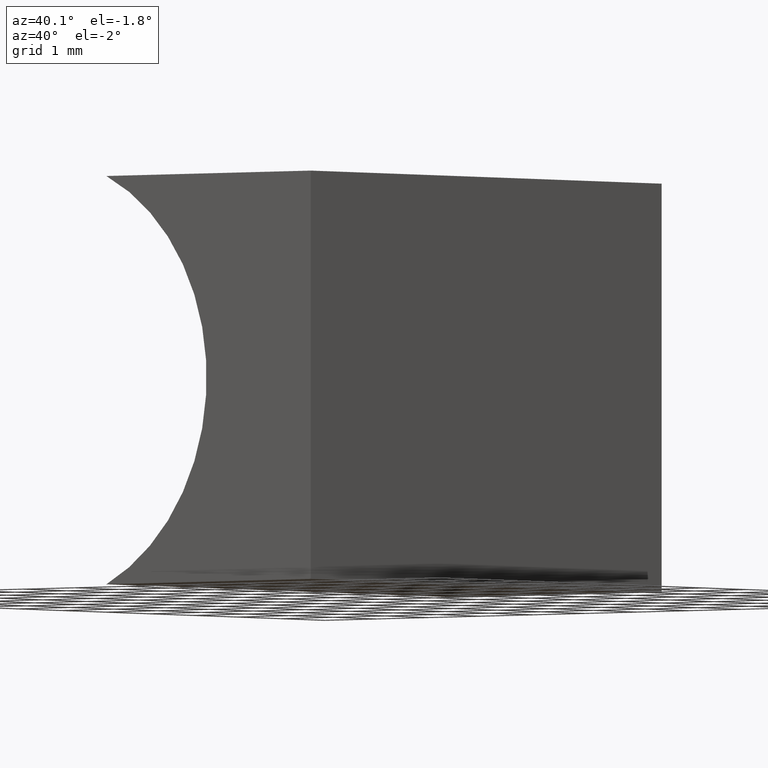
[diagram: clean part render]
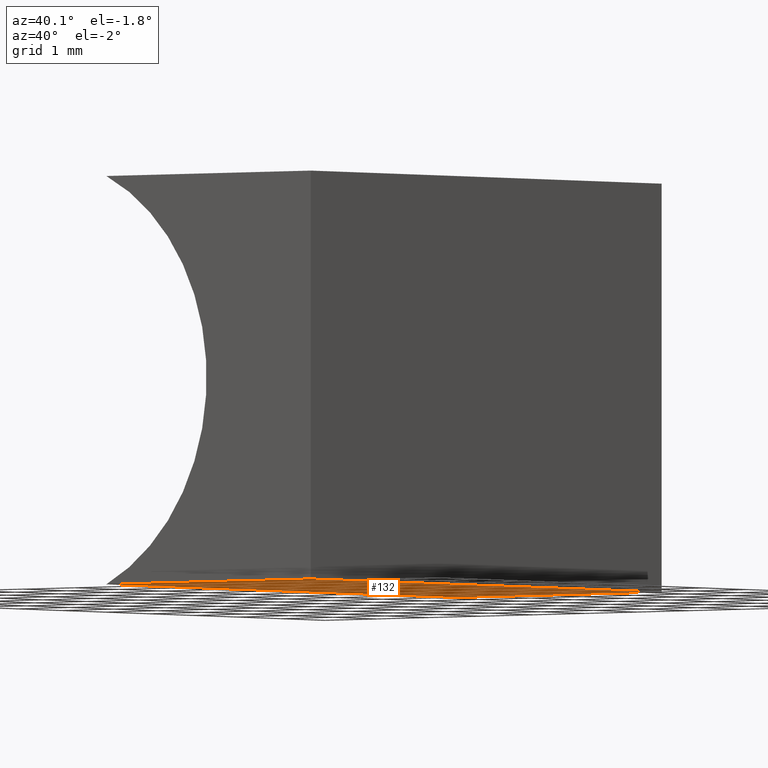
[diagram: same view with one face highlighted and labeled with its STEP entity id]
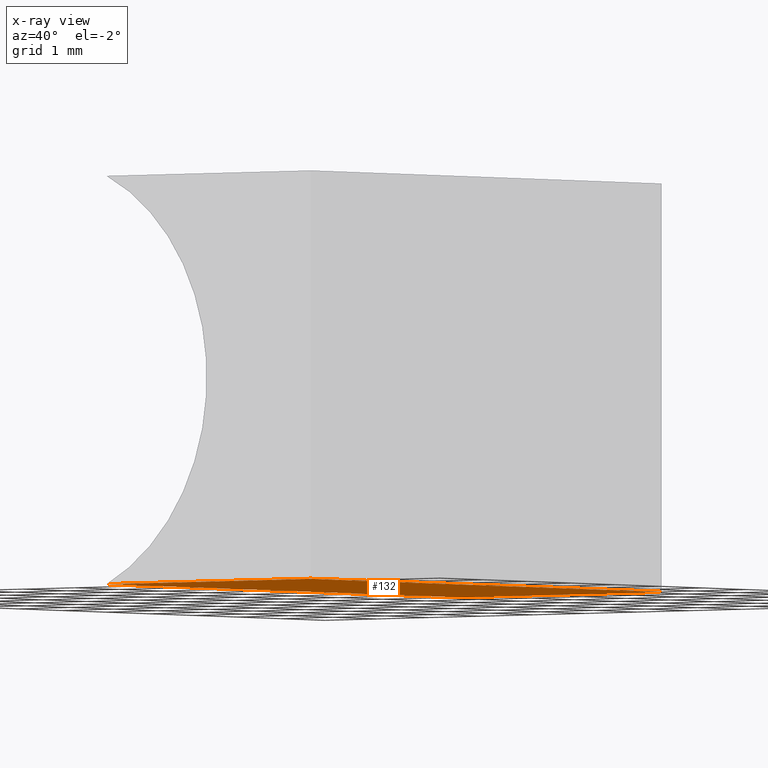
[diagram: x-ray of the same camera — body ghosted, the highlighted face saturated]
A machine part, auxiliary view. The second image highlights one B-rep face of the part: STEP entity #132.
The next image is the same camera in x-ray: the body ghosted, the highlighted face saturated — about 0% of this face is hidden behind the body in this view.
In plain terms, the highlighted planar face has unit normal (0, -0, 1).
Its self-contained STEP definition (entity closure, byte-faithful):
#2 = CARTESIAN_POINT ( 'NONE',  ( 0.0000000000000000000, 8.000000000000000000, 0.0000000000000000000 ) ) ;
#9 = LINE ( 'NONE', #2, #69 ) ;
#23 = PLANE ( 'NONE',  #202 ) ;
#33 = LINE ( 'NONE', #45, #154 ) ;
#35 = EDGE_CURVE ( 'NONE', #51, #139, #9, .T. ) ;
#40 = ORIENTED_EDGE ( 'NONE', *, *, #104, .T. ) ;
#45 = CARTESIAN_POINT ( 'NONE',  ( 0.0000000000000000000, 8.000000000000000000, 0.0000000000000000000 ) ) ;
#51 = VERTEX_POINT ( 'NONE', #55 ) ;
#54 = VERTEX_POINT ( 'NONE', #129 ) ;
#55 = CARTESIAN_POINT ( 'NONE',  ( 0.0000000000000000000, 8.000000000000000000, 0.0000000000000000000 ) ) ;
#60 = DIRECTION ( 'NONE',  ( -0.0000000000000000000, -1.000000000000000000, -0.0000000000000000000 ) ) ;
#69 = VECTOR ( 'NONE', #71, 1000.000000000000000 ) ;
#71 = DIRECTION ( 'NONE',  ( -1.000000000000000000, 0.0000000000000000000, 1.559969281008474800E-016 ) ) ;
#76 = CARTESIAN_POINT ( 'NONE',  ( 0.0000000000000000000, 8.000000000000000000, 0.0000000000000000000 ) ) ;
#77 = DIRECTION ( 'NONE',  ( 1.000000000000000000, 0.0000000000000000000, -1.559969281008474800E-016 ) ) ;
#83 = CARTESIAN_POINT ( 'NONE',  ( 0.0000000000000000000, 0.0000000000000000000, 0.0000000000000000000 ) ) ;
#87 = CARTESIAN_POINT ( 'NONE',  ( -3.925227291513248200, 8.000000000000000000, 8.673617379884035500E-016 ) ) ;
#102 = CARTESIAN_POINT ( 'NONE',  ( -3.925227291513248200, 8.000000000000000000, 8.673617379884035500E-016 ) ) ;
#104 = EDGE_CURVE ( 'NONE', #51, #133, #33, .T. ) ;
#108 = LINE ( 'NONE', #87, #130 ) ;
#110 = EDGE_CURVE ( 'NONE', #133, #54, #164, .T. ) ;
#113 = ORIENTED_EDGE ( 'NONE', *, *, #110, .T. ) ;
#129 = CARTESIAN_POINT ( 'NONE',  ( -3.925227291513248200, 0.0000000000000000000, 8.673617379884035500E-016 ) ) ;
#130 = VECTOR ( 'NONE', #60, 1000.000000000000000 ) ;
#132 = ADVANCED_FACE ( 'NONE', ( #149 ), #23, .F. ) ;
#133 = VERTEX_POINT ( 'NONE', #197 ) ;
#137 = EDGE_LOOP ( 'NONE', ( #113, #188, #160, #40 ) ) ;
#139 = VERTEX_POINT ( 'NONE', #102 ) ;
#149 = FACE_OUTER_BOUND ( 'NONE', #137, .T. ) ;
#154 = VECTOR ( 'NONE', #178, 1000.000000000000000 ) ;
#160 = ORIENTED_EDGE ( 'NONE', *, *, #35, .F. ) ;
#163 = DIRECTION ( 'NONE',  ( -1.000000000000000000, 0.0000000000000000000, 1.559969281008474800E-016 ) ) ;
#164 = LINE ( 'NONE', #83, #195 ) ;
#178 = DIRECTION ( 'NONE',  ( -0.0000000000000000000, -1.000000000000000000, -0.0000000000000000000 ) ) ;
#187 = EDGE_CURVE ( 'NONE', #139, #54, #108, .T. ) ;
#188 = ORIENTED_EDGE ( 'NONE', *, *, #187, .F. ) ;
#194 = DIRECTION ( 'NONE',  ( 1.559969281008474800E-016, -0.0000000000000000000, 1.000000000000000000 ) ) ;
#195 = VECTOR ( 'NONE', #163, 1000.000000000000000 ) ;
#197 = CARTESIAN_POINT ( 'NONE',  ( 0.0000000000000000000, 0.0000000000000000000, 0.0000000000000000000 ) ) ;
#202 = AXIS2_PLACEMENT_3D ( 'NONE', #76, #194, #77 ) ;